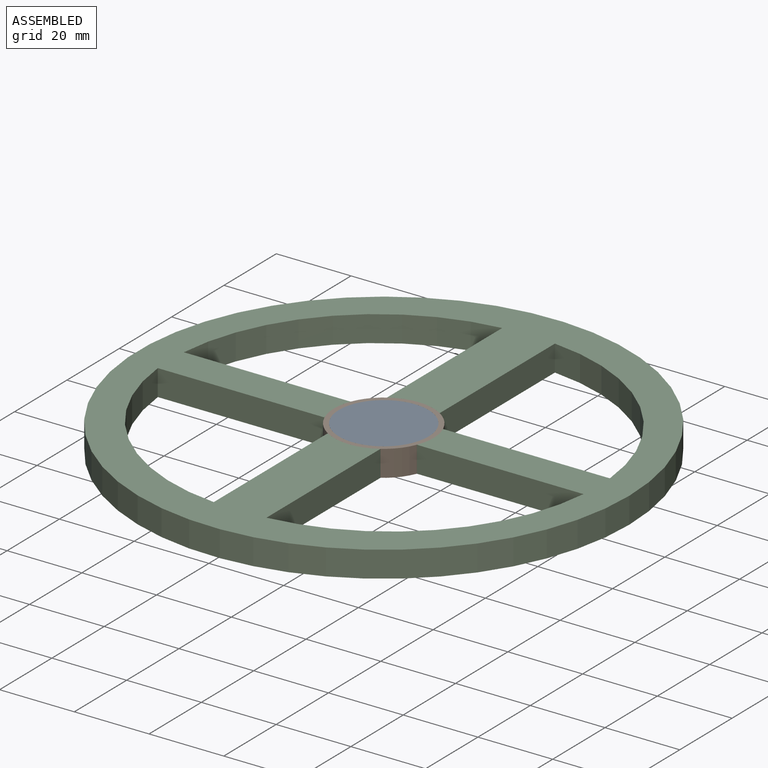
[diagram: assembled view]
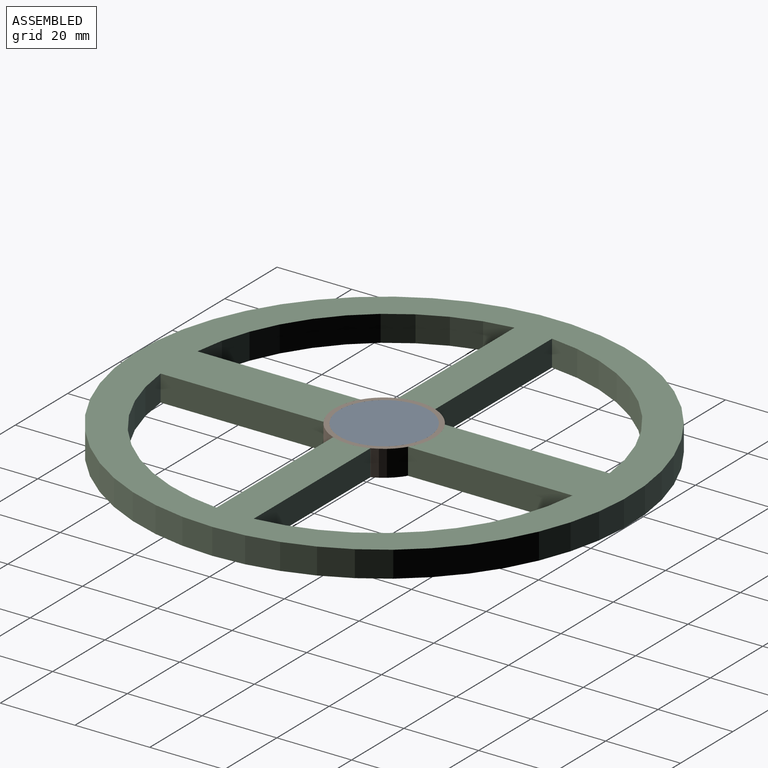
[diagram: assembled view, second angle]
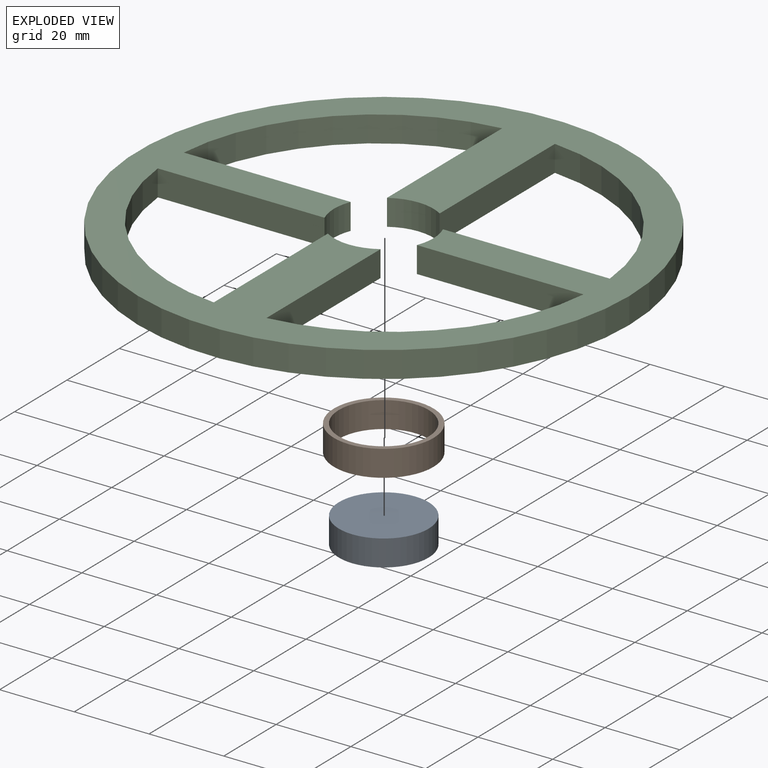
[diagram: exploded view]
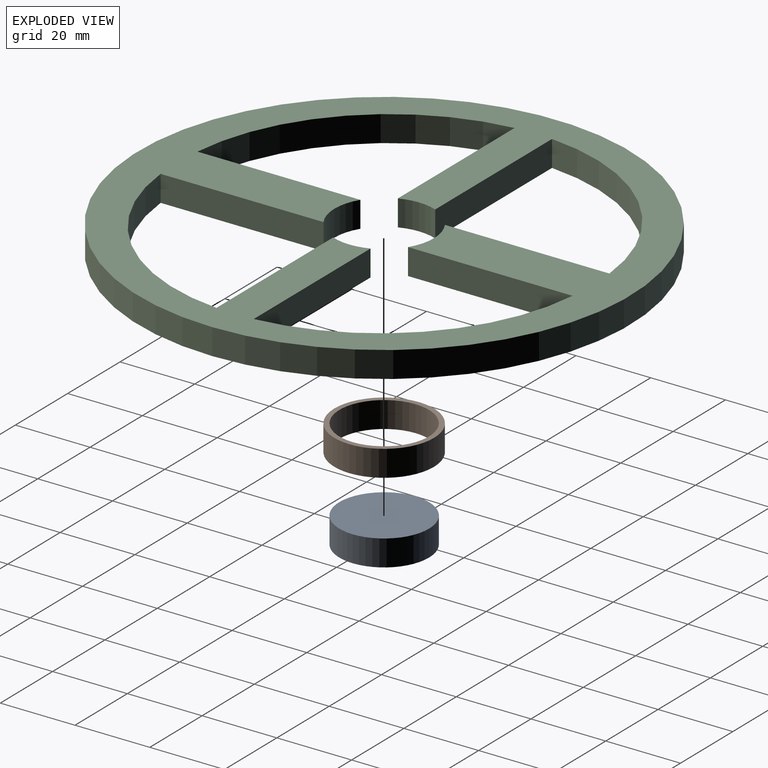
[diagram: exploded view, second angle]
ASSEMBLY  parts=3 mates=2
PART A: 3 faces, bbox 24x24x7 mm
  f0: cylinder r=12.01mm len=24.01mm, axis (0,0,-1), area 528mm2, adj f1,f2
  f1: plane 24.01x24.01mm, normal (0,0,1), area 452.8mm2, adj f0
  f2: plane 24.01x24.01mm, normal (0,0,-1), area 452.8mm2, adj f0
PART B: 4 faces, bbox 26.7x26.7x7 mm
  f0: cylinder r=12.01mm len=24.01mm, axis (0,0,-1), area 528mm2, adj f2,f3
  f1: cylinder r=13.33mm len=26.66mm, axis (0,0,-1), area 586.2mm2, adj f2,f3
  f2: plane 26.66x26.66mm, normal (0,0,1), area 105.2mm2, adj f0,f1
  f3: plane 26.66x26.66mm, normal (0,0,-1), area 105.2mm2, adj f0,f1
PART C: 19 faces, bbox 131.4x131.4x7 mm
  f0: plane 44.03x7mm, normal (1,0,0), area 308.2mm2, adj f1,f16,f17,f18
  f1: cylinder r=55.36mm len=50.34mm, axis (0,0,-1), area 538.7mm2, adj f0,f2,f17,f18
  f2: plane 44.64x7mm, normal (0,1,0), area 312.5mm2, adj f1,f3,f17,f18
  f3: cylinder r=13.33mm len=10mm, axis (0,0,-1), area 71.8mm2, adj f2,f4,f17,f18
  f4: plane 44.6x7mm, normal (0,-1,0), area 312.2mm2, adj f3,f5,f17,f18
  f5: cylinder r=55.36mm len=49.91mm, axis (0,0,-1), area 535.6mm2, adj f4,f6,f17,f18
  f6: plane 43.58x7mm, normal (1,0,0), area 305.1mm2, adj f5,f7,f17,f18
  f7: cylinder r=13.33mm len=14.1mm, axis (0,0,-1), area 104mm2, adj f6,f8,f17,f18
  f8: plane 43.58x7mm, normal (-1,0,0), area 305.1mm2, adj f7,f9,f17,f18
  f9: cylinder r=55.36mm len=49.91mm, axis (0,0,-1), area 535.6mm2, adj f8,f10,f17,f18
  f10: plane 44.6x7mm, normal (0,-1,0), area 312.2mm2, adj f9,f11,f17,f18
  f11: cylinder r=13.33mm len=10mm, axis (0,0,-1), area 71.8mm2, adj f10,f12,f17,f18
  f12: plane 44.64x7mm, normal (0,1,0), area 312.5mm2, adj f11,f13,f17,f18
  f13: cylinder r=55.36mm len=50.34mm, axis (0,0,-1), area 538.8mm2, adj f12,f14,f17,f18
  f14: plane 44.03x7mm, normal (-1,0,0), area 308.2mm2, adj f13,f16,f17,f18
  f15: cylinder r=65.68mm len=131.37mm, axis (0,0,-1), area 2888.9mm2, adj f17,f18
  f16: cylinder r=13.33mm len=14.1mm, axis (0,0,-1), area 104mm2, adj f0,f14,f17,f18
  f17: plane 131.37x131.37mm, normal (0,0,1), area 5601mm2, adj f0,f1,f2,f3,f4,f5,f6,f7
  f18: plane 131.37x131.37mm, normal (0,0,-1), area 5601mm2, adj f0,f1,f2,f3,f4,f5,f6,f7
PLACE A t=(-50.81,-14.85,18.22)mm
PLACE B t=(-50.81,-14.85,18.22)mm
PLACE C t=(-50.81,-14.85,18.22)mm
MATE revolute B.f0 <-> A.f0  axis (0,0,1) through (-50.81,-14.85,25.22)mm
MATE fastened B.f1 <-> C.f11  axis (0,0,-1) through (-50.81,-14.85,21.72)mm
